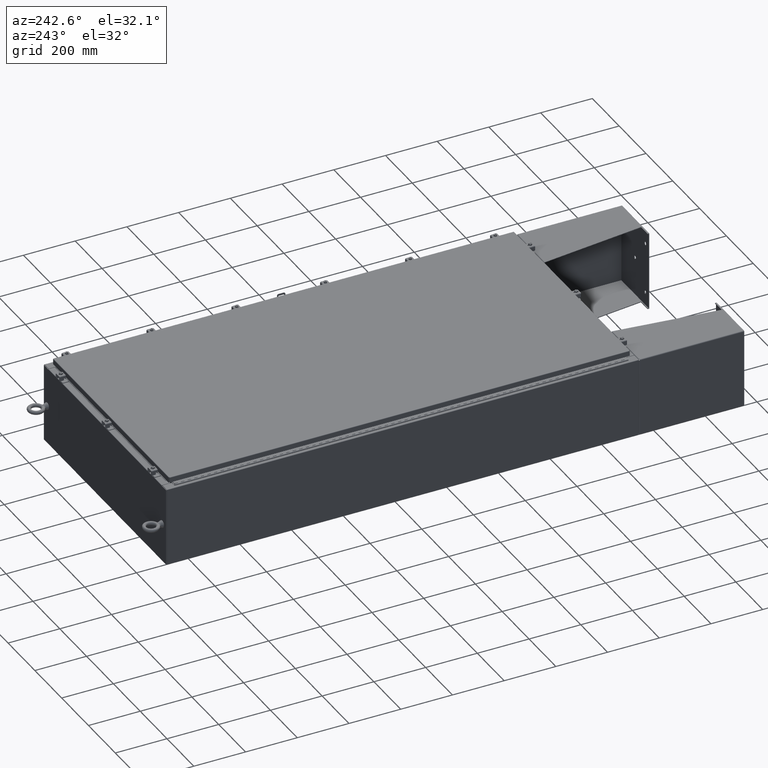
[diagram: clean part render]
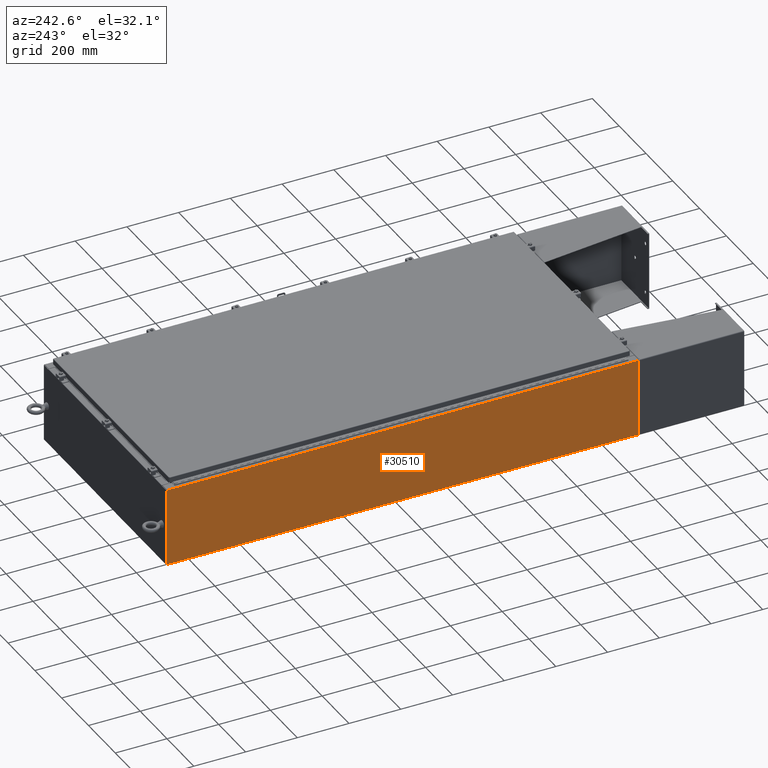
[diagram: same view with one face highlighted and labeled with its STEP entity id]
A machine part, auxiliary view. The second image highlights one B-rep face of the part: STEP entity #30510.
In plain terms, the highlighted planar face has unit normal (1, 0, 0).
Its self-contained STEP definition (entity closure, byte-faithful):
#670 = DIRECTION ( 'NONE',  ( 0.0000000000000000000, 1.000000000000000000, 0.0000000000000000000 ) ) ;
#2067 = DIRECTION ( 'NONE',  ( 1.000000000000000000, 0.0000000000000000000, 3.482016343714355100E-015 ) ) ;
#2606 = VERTEX_POINT ( 'NONE', #41950 ) ;
#5223 = VECTOR ( 'NONE', #670, 39.37007874015748100 ) ;
#5289 = CARTESIAN_POINT ( 'NONE',  ( -17.99999999999999600, -35.92530000000000000, 0.01299999999999984700 ) ) ;
#5697 = CARTESIAN_POINT ( 'NONE',  ( -17.99999999999999600, 35.92530000000000000, -6.293710784286996200E-014 ) ) ;
#8435 = ORIENTED_EDGE ( 'NONE', *, *, #8975, .T. ) ;
#8975 = EDGE_CURVE ( 'NONE', #74339, #72266, #60292, .T. ) ;
#11174 = DIRECTION ( 'NONE',  ( -0.0000000000000000000, 1.000000000000000000, -0.0000000000000000000 ) ) ;
#15776 = CARTESIAN_POINT ( 'NONE',  ( -17.99999999999999600, 35.92530000000000000, 0.01299999999999984700 ) ) ;
#21786 = VECTOR ( 'NONE', #11174, 39.37007874015748100 ) ;
#23780 = VECTOR ( 'NONE', #71976, 39.37007874015748100 ) ;
#23956 = CARTESIAN_POINT ( 'NONE',  ( -18.00000000000003900, -35.92530000000000000, 11.83760000000000200 ) ) ;
#27116 = CARTESIAN_POINT ( 'NONE',  ( -18.00000000000003900, 35.92530000000000000, 11.83760000000000200 ) ) ;
#30510 = ADVANCED_FACE ( 'NONE', ( #31543 ), #31282, .F. ) ;
#31160 = ORIENTED_EDGE ( 'NONE', *, *, #33742, .F. ) ;
#31282 = PLANE ( 'NONE',  #40747 ) ;
#31543 = FACE_OUTER_BOUND ( 'NONE', #50803, .T. ) ;
#32750 = EDGE_CURVE ( 'NONE', #50040, #2606, #41435, .T. ) ;
#33742 = EDGE_CURVE ( 'NONE', #50040, #72266, #67364, .T. ) ;
#36525 = EDGE_CURVE ( 'NONE', #2606, #74339, #38333, .T. ) ;
#38333 = LINE ( 'NONE', #23956, #5223 ) ;
#38421 = ORIENTED_EDGE ( 'NONE', *, *, #36525, .T. ) ;
#40747 = AXIS2_PLACEMENT_3D ( 'NONE', #72915, #2067, #43267 ) ;
#41435 = LINE ( 'NONE', #54076, #23780 ) ;
#41950 = CARTESIAN_POINT ( 'NONE',  ( -18.00000000000003900, -35.92530000000000000, 11.83760000000000200 ) ) ;
#43267 = DIRECTION ( 'NONE',  ( 3.482016343714355100E-015, 0.0000000000000000000, -1.000000000000000000 ) ) ;
#44500 = VECTOR ( 'NONE', #45885, 39.37007874015748100 ) ;
#45885 = DIRECTION ( 'NONE',  ( 3.482016343714355500E-015, 0.0000000000000000000, -1.000000000000000000 ) ) ;
#49868 = ORIENTED_EDGE ( 'NONE', *, *, #32750, .T. ) ;
#50040 = VERTEX_POINT ( 'NONE', #5289 ) ;
#50803 = EDGE_LOOP ( 'NONE', ( #38421, #8435, #31160, #49868 ) ) ;
#52569 = CARTESIAN_POINT ( 'NONE',  ( -17.99999999999999600, 35.92530000000000000, 0.01299999999999984700 ) ) ;
#54076 = CARTESIAN_POINT ( 'NONE',  ( -17.99999999999999600, -35.92529999999999300, -6.293710784286996200E-014 ) ) ;
#60292 = LINE ( 'NONE', #5697, #44500 ) ;
#67364 = LINE ( 'NONE', #52569, #21786 ) ;
#71976 = DIRECTION ( 'NONE',  ( -3.482016343714355500E-015, 0.0000000000000000000, 1.000000000000000000 ) ) ;
#72266 = VERTEX_POINT ( 'NONE', #15776 ) ;
#72915 = CARTESIAN_POINT ( 'NONE',  ( -17.99999999999999600, 0.0000000000000000000, -6.293710784286996200E-014 ) ) ;
#74339 = VERTEX_POINT ( 'NONE', #27116 ) ;